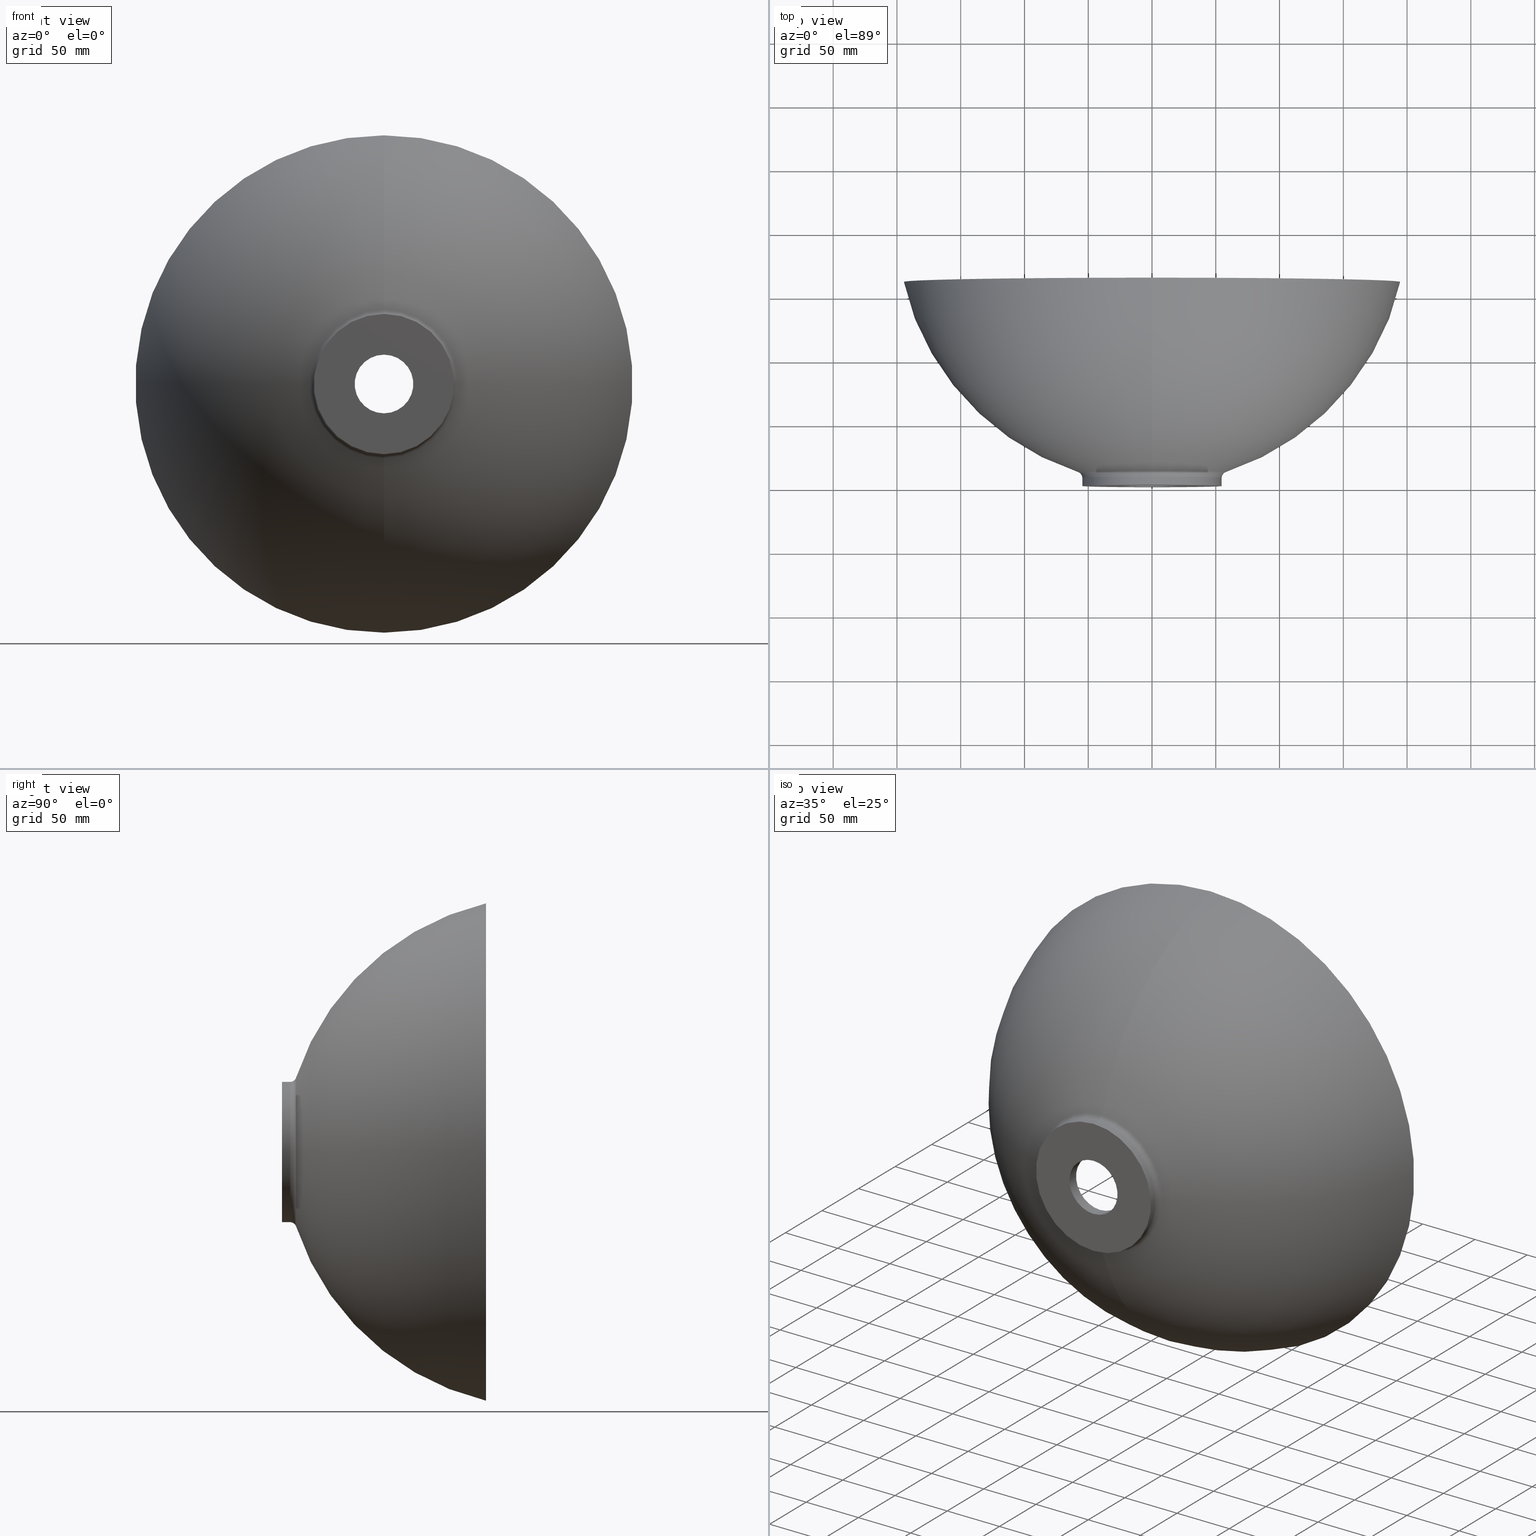
[diagram: canonical four-view strip — front | top / right | iso, engineering-drawing reading convention]
A machine part, canonical four-view strip (front | top / right | iso — engineering-drawing reading convention). The complete STEP part file that produces these views, byte-faithful:
ISO-10303-21;
HEADER;
FILE_DESCRIPTION (( 'STEP AP214' ),
    '1' );
FILE_NAME ('D787.STEP',
    '2018-06-29T09:22:30',
    ( '' ),
    ( '' ),
    'SwSTEP 2.0',
    'SolidWorks 2017',
    '' );
FILE_SCHEMA (( 'AUTOMOTIVE_DESIGN' ));
ENDSEC;

DATA;
#1 =( NAMED_UNIT ( * ) SI_UNIT ( $, .STERADIAN. ) SOLID_ANGLE_UNIT ( ) );
#2 = DIRECTION ( 'NONE',  ( -0.0000000000000000000, -1.000000000000000000, -0.0000000000000000000 ) ) ;
#3 = DIRECTION ( 'NONE',  ( 0.0000000000000000000, 0.0000000000000000000, -1.000000000000000000 ) ) ;
#4 = CIRCLE ( 'NONE', #122, 4.999999999999997300 ) ;
#5 = ORIENTED_EDGE ( 'NONE', *, *, #330, .F. ) ;
#6 = ORIENTED_EDGE ( 'NONE', *, *, #337, .F. ) ;
#7 = AXIS2_PLACEMENT_3D ( 'NONE', #212, #352, #427 ) ;
#8 = APPLICATION_CONTEXT ( 'automotive_design' ) ;
#9 = PRODUCT_DEFINITION_FORMATION_WITH_SPECIFIED_SOURCE ( 'ANY', '', #317, .NOT_KNOWN. ) ;
#10 = CIRCLE ( 'NONE', #218, 55.00000000000001400 ) ;
#11 = CIRCLE ( 'NONE', #365, 207.0152804173007700 ) ;
#12 = PLANE ( 'NONE',  #175 ) ;
#13 = STYLED_ITEM ( 'NONE', ( #301 ), #48 ) ;
#14 = CYLINDRICAL_SURFACE ( 'NONE', #116, 55.00000000000000700 ) ;
#15 = VECTOR ( 'NONE', #412, 1000.000000000000000 ) ;
#16 = DIRECTION ( 'NONE',  ( 0.0000000000000000000, 0.0000000000000000000, -1.000000000000000000 ) ) ;
#17 = CONICAL_SURFACE ( 'NONE', #432, 23.00000000000000000, 0.8726646259971667700 ) ;
#18 = PRODUCT_DEFINITION ( 'UNKNOWN', '', #172, #203 ) ;
#19 = FACE_OUTER_BOUND ( 'NONE', #341, .T. ) ;
#20 = AXIS2_PLACEMENT_3D ( 'NONE', #176, #249, #177 ) ;
#21 = CONICAL_SURFACE ( 'NONE', #235, 23.00000000000000000, 0.8726646259971667700 ) ;
#22 = EDGE_CURVE ( 'NONE', #82, #261, #67, .T. ) ;
#23 = DIRECTION ( 'NONE',  ( -0.0000000000000000000, -1.000000000000000000, -0.0000000000000000000 ) ) ;
#24 = ORIENTED_EDGE ( 'NONE', *, *, #407, .F. ) ;
#25 = VERTEX_POINT ( 'NONE', #137 ) ;
#26 = ORIENTED_EDGE ( 'NONE', *, *, #206, .T. ) ;
#27 = AXIS2_PLACEMENT_3D ( 'NONE', #225, #300, #86 ) ;
#28 = PRODUCT ( 'D787', 'D787', '', ( #287 ) ) ;
#29 = EDGE_CURVE ( 'NONE', #375, #183, #38, .T. ) ;
#30 = DIRECTION ( 'NONE',  ( 0.0000000000000000000, 0.0000000000000000000, -1.000000000000000000 ) ) ;
#31 = CARTESIAN_POINT ( 'NONE',  ( 0.0000000000000000000, 6.351875518007669400, 0.0000000000000000000 ) ) ;
#32 =( NAMED_UNIT ( * ) SI_UNIT ( $, .STERADIAN. ) SOLID_ANGLE_UNIT ( ) );
#33 = DIRECTION ( 'NONE',  ( -0.0000000000000000000, -1.000000000000000000, -0.0000000000000000000 ) ) ;
#34 = DIRECTION ( 'NONE',  ( 0.0000000000000000000, 0.0000000000000000000, -1.000000000000000000 ) ) ;
#35 = CARTESIAN_POINT ( 'NONE',  ( 6.945763980383447500E-015, 6.351875518007669400, 54.99999999999999300 ) ) ;
#36 = PRESENTATION_LAYER_ASSIGNMENT (  '', '', ( #318 ) ) ;
#37 = DIRECTION ( 'NONE',  ( -0.0000000000000000000, -1.000000000000000000, -0.0000000000000000000 ) ) ;
#38 = LINE ( 'NONE', #268, #293 ) ;
#39 = DIRECTION ( 'NONE',  ( 0.0000000000000000000, 0.0000000000000000000, 1.000000000000000000 ) ) ;
#40 = EDGE_LOOP ( 'NONE', ( #370, #139, #406, #208 ) ) ;
#41 = CARTESIAN_POINT ( 'NONE',  ( 0.0000000000000000000, 6.351875518007670300, 0.0000000000000000000 ) ) ;
#42 = ORIENTED_EDGE ( 'NONE', *, *, #326, .T. ) ;
#43 = FACE_BOUND ( 'NONE', #129, .T. ) ;
#44 = FACE_OUTER_BOUND ( 'NONE', #81, .T. ) ;
#45 = CARTESIAN_POINT ( 'NONE',  ( 0.0000000000000000000, 9.000000000000001800, 0.0000000000000000000 ) ) ;
#46 = AXIS2_PLACEMENT_3D ( 'NONE', #108, #170, #3 ) ;
#47 = DIRECTION ( 'NONE',  ( -0.0000000000000000000, -1.000000000000000000, -0.0000000000000000000 ) ) ;
#48 = MANIFOLD_SOLID_BREP ( 'Rotation1', #163 ) ;
#49 = EDGE_LOOP ( 'NONE', ( #106, #358, #289, #359 ) ) ;
#50 = CARTESIAN_POINT ( 'NONE',  ( 0.0000000000000000000, 160.0000000000000000, 0.0000000000000000000 ) ) ;
#51 = EDGE_CURVE ( 'NONE', #239, #83, #263, .T. ) ;
#52 = EDGE_LOOP ( 'NONE', ( #24, #187, #409, #255 ) ) ;
#53 = DIRECTION ( 'NONE',  ( 0.0000000000000000000, 1.000000000000000000, 0.0000000000000000000 ) ) ;
#54 = ADVANCED_FACE ( 'NONE', ( #95 ), #17, .F. ) ;
#55 =( GEOMETRIC_REPRESENTATION_CONTEXT ( 3 ) GLOBAL_UNCERTAINTY_ASSIGNED_CONTEXT ( ( #241 ) ) GLOBAL_UNIT_ASSIGNED_CONTEXT ( ( #117, #58, #392 ) ) REPRESENTATION_CONTEXT ( 'NONE', 'WORKASPACE' ) );
#56 = EDGE_CURVE ( 'NONE', #152, #165, #211, .T. ) ;
#57 = ORIENTED_EDGE ( 'NONE', *, *, #266, .F. ) ;
#58 =( NAMED_UNIT ( * ) PLANE_ANGLE_UNIT ( ) SI_UNIT ( $, .RADIAN. ) );
#59 = CIRCLE ( 'NONE', #270, 192.4496681498263800 ) ;
#60 = DIRECTION ( 'NONE',  ( -1.000000000000000000, 0.0000000000000000000, 0.0000000000000000000 ) ) ;
#61 = ORIENTED_EDGE ( 'NONE', *, *, #202, .F. ) ;
#62 = VERTEX_POINT ( 'NONE', #66 ) ;
#63 = VECTOR ( 'NONE', #215, 1000.000000000000000 ) ;
#64 = EDGE_CURVE ( 'NONE', #83, #239, #149, .T. ) ;
#65 = TOROIDAL_SURFACE ( 'NONE', #135, -6.448385175845634100, 192.4496681498263800 ) ;
#66 = CARTESIAN_POINT ( 'NONE',  ( 6.735557395310445800E-015, 0.0000000000000000000, 55.00000000000002100 ) ) ;
#67 = LINE ( 'NONE', #114, #418 ) ;
#68 = VERTEX_POINT ( 'NONE', #185 ) ;
#69 = CARTESIAN_POINT ( 'NONE',  ( 0.0000000000000000000, -6.123233995736772200E-017, 0.0000000000000000000 ) ) ;
#70 = ADVANCED_BREP_SHAPE_REPRESENTATION ( 'D787', ( #48, #428 ), #55 ) ;
#71 = EDGE_CURVE ( 'NONE', #82, #375, #184, .T. ) ;
#72 = ADVANCED_FACE ( 'NONE', ( #44 ), #65, .F. ) ;
#73 = CARTESIAN_POINT ( 'NONE',  ( 0.0000000000000000000, 0.0000000000000000000, 0.0000000000000000000 ) ) ;
#74 = TOROIDAL_SURFACE ( 'NONE', #213, 60.00000000000000000, 4.999999999999998200 ) ;
#75 = ORIENTED_EDGE ( 'NONE', *, *, #202, .T. ) ;
#76 = ORIENTED_EDGE ( 'NONE', *, *, #396, .F. ) ;
#77 = FACE_OUTER_BOUND ( 'NONE', #339, .T. ) ;
#78 = DIRECTION ( 'NONE',  ( -0.0000000000000000000, -1.000000000000000000, -0.0000000000000000000 ) ) ;
#79 = APPLICATION_PROTOCOL_DEFINITION ( 'draft international standard', 'automotive_design', 1998, #333 ) ;
#80 = FACE_OUTER_BOUND ( 'NONE', #92, .T. ) ;
#81 = EDGE_LOOP ( 'NONE', ( #57, #286, #284, #343 ) ) ;
#82 = VERTEX_POINT ( 'NONE', #417 ) ;
#83 = VERTEX_POINT ( 'NONE', #151 ) ;
#84 = CARTESIAN_POINT ( 'NONE',  ( 0.0000000000000000000, 0.0000000000000000000, 0.0000000000000000000 ) ) ;
#85 = ORIENTED_EDGE ( 'NONE', *, *, #22, .T. ) ;
#86 = DIRECTION ( 'NONE',  ( 0.0000000000000000000, 0.0000000000000000000, -1.000000000000000000 ) ) ;
#87 =( GEOMETRIC_REPRESENTATION_CONTEXT ( 3 ) GLOBAL_UNCERTAINTY_ASSIGNED_CONTEXT ( ( #362 ) ) GLOBAL_UNIT_ASSIGNED_CONTEXT ( ( #98, #265, #1 ) ) REPRESENTATION_CONTEXT ( 'NONE', 'WORKASPACE' ) );
#88 = PRESENTATION_STYLE_ASSIGNMENT (( #321 ) ) ;
#89 = DIRECTION ( 'NONE',  ( -0.0000000000000000000, -1.000000000000000000, -0.0000000000000000000 ) ) ;
#90 = LINE ( 'NONE', #303, #15 ) ;
#91 = PRODUCT_RELATED_PRODUCT_CATEGORY ( 'part', '', ( #28 ) ) ;
#92 = EDGE_LOOP ( 'NONE', ( #323, #168, #179, #331 ) ) ;
#93 = ORIENTED_EDGE ( 'NONE', *, *, #258, .T. ) ;
#94 = FACE_OUTER_BOUND ( 'NONE', #245, .T. ) ;
#95 = FACE_OUTER_BOUND ( 'NONE', #374, .T. ) ;
#96 = EDGE_CURVE ( 'NONE', #238, #152, #4, .T. ) ;
#97 = SURFACE_STYLE_FILL_AREA ( #294 ) ;
#98 =( LENGTH_UNIT ( ) NAMED_UNIT ( * ) SI_UNIT ( .MILLI., .METRE. ) );
#99 = ORIENTED_EDGE ( 'NONE', *, *, #138, .F. ) ;
#100 = CIRCLE ( 'NONE', #401, 54.99999999999999300 ) ;
#101 = CARTESIAN_POINT ( 'NONE',  ( 2.204364238465235800E-014, 160.0000000000000000, 180.0000000000000000 ) ) ;
#102 = EDGE_CURVE ( 'NONE', #238, #344, #269, .T. ) ;
#103 = CARTESIAN_POINT ( 'NONE',  ( -7.896994265268598000E-016, 207.6851594974558900, -6.448385175845634100 ) ) ;
#104 = AXIS2_PLACEMENT_3D ( 'NONE', #199, #60, #131 ) ;
#105 = DIRECTION ( 'NONE',  ( 0.0000000000000000000, 0.0000000000000000000, -1.000000000000000000 ) ) ;
#106 = ORIENTED_EDGE ( 'NONE', *, *, #206, .F. ) ;
#107 = VERTEX_POINT ( 'NONE', #101 ) ;
#108 = CARTESIAN_POINT ( 'NONE',  ( 0.0000000000000000000, 20.00000000000000000, 0.0000000000000000000 ) ) ;
#109 = CARTESIAN_POINT ( 'NONE',  ( 0.0000000000000000000, 0.0000000000000000000, 0.0000000000000000000 ) ) ;
#110 = DIRECTION ( 'NONE',  ( 0.0000000000000000000, 1.000000000000000000, 0.0000000000000000000 ) ) ;
#111 = AXIS2_PLACEMENT_3D ( 'NONE', #195, #319, #223 ) ;
#112 = ORIENTED_EDGE ( 'NONE', *, *, #64, .F. ) ;
#113 = DIRECTION ( 'NONE',  ( 1.000000000000000000, 0.0000000000000000000, 0.0000000000000000000 ) ) ;
#114 = CARTESIAN_POINT ( 'NONE',  ( 0.0000000000000000000, 0.0000000000000000000, -23.00000000000000000 ) ) ;
#115 = DIRECTION ( 'NONE',  ( 0.0000000000000000000, 0.0000000000000000000, -1.000000000000000000 ) ) ;
#116 = AXIS2_PLACEMENT_3D ( 'NONE', #320, #141, #274 ) ;
#117 =( LENGTH_UNIT ( ) NAMED_UNIT ( * ) SI_UNIT ( .MILLI., .METRE. ) );
#118 = DIRECTION ( 'NONE',  ( 0.0000000000000000000, 0.0000000000000000000, -1.000000000000000000 ) ) ;
#119 = DIRECTION ( 'NONE',  ( 0.0000000000000000000, 0.0000000000000000000, 1.000000000000000000 ) ) ;
#120 = CARTESIAN_POINT ( 'NONE',  ( 0.0000000000000000000, 160.0000000000000000, 0.0000000000000000000 ) ) ;
#121 = DIRECTION ( 'NONE',  ( 0.0000000000000000000, 0.0000000000000000000, -1.000000000000000000 ) ) ;
#122 = AXIS2_PLACEMENT_3D ( 'NONE', #159, #346, #150 ) ;
#123 = CARTESIAN_POINT ( 'NONE',  ( 1.551829157441492000E-014, 11.09995979719670700, 58.43293405444508400 ) ) ;
#124 = LINE ( 'NONE', #416, #146 ) ;
#125 = DIRECTION ( 'NONE',  ( -0.0000000000000000000, -1.000000000000000000, -0.0000000000000000000 ) ) ;
#126 = CARTESIAN_POINT ( 'NONE',  ( -195.0000000000000000, 160.0000000000000000, 0.0000000000000000000 ) ) ;
#127 = DIRECTION ( 'NONE',  ( -0.0000000000000000000, -1.000000000000000000, -0.0000000000000000000 ) ) ;
#128 = DIRECTION ( 'NONE',  ( 0.0000000000000000000, 0.0000000000000000000, -1.000000000000000000 ) ) ;
#129 = EDGE_LOOP ( 'NONE', ( #93, #231 ) ) ;
#130 = TOROIDAL_SURFACE ( 'NONE', #411, 60.00000000000000000, 4.999999999999998200 ) ;
#131 = DIRECTION ( 'NONE',  ( 0.0000000000000000000, 0.0000000000000000000, 1.000000000000000000 ) ) ;
#132 = CARTESIAN_POINT ( 'NONE',  ( 0.0000000000000000000, 20.00000000000000000, 0.0000000000000000000 ) ) ;
#133 = CARTESIAN_POINT ( 'NONE',  ( 0.0000000000000000000, 0.0000000000000000000, -55.00000000000001400 ) ) ;
#134 = AXIS2_PLACEMENT_3D ( 'NONE', #196, #2, #372 ) ;
#135 = AXIS2_PLACEMENT_3D ( 'NONE', #262, #200, #121 ) ;
#136 = CYLINDRICAL_SURFACE ( 'NONE', #353, 55.00000000000000700 ) ;
#137 = CARTESIAN_POINT ( 'NONE',  ( 0.0000000000000000000, 160.0000000000000000, -195.0000000000000000 ) ) ;
#138 = EDGE_CURVE ( 'NONE', #344, #238, #100, .T. ) ;
#139 = ORIENTED_EDGE ( 'NONE', *, *, #138, .T. ) ;
#140 = ORIENTED_EDGE ( 'NONE', *, *, #330, .T. ) ;
#141 = DIRECTION ( 'NONE',  ( -0.0000000000000000000, -1.000000000000000000, -0.0000000000000000000 ) ) ;
#142 = DIRECTION ( 'NONE',  ( -0.0000000000000000000, -1.000000000000000000, -0.0000000000000000000 ) ) ;
#143 = PRODUCT_DEFINITION_SHAPE ( 'NONE', 'NONE',  #144 ) ;
#144 = PRODUCT_DEFINITION ( 'UNKNOWN', '', #9, #363 ) ;
#145 = DIRECTION ( 'NONE',  ( -0.0000000000000000000, -1.000000000000000000, -0.0000000000000000000 ) ) ;
#146 = VECTOR ( 'NONE', #221, 1000.000000000000000 ) ;
#147 = PRODUCT_CONTEXT ( 'NONE', #229, 'mechanical' ) ;
#148 = ORIENTED_EDGE ( 'NONE', *, *, #181, .F. ) ;
#149 = CIRCLE ( 'NONE', #46, 36.10928951853636400 ) ;
#150 = DIRECTION ( 'NONE',  ( 0.0000000000000000000, 0.0000000000000000000, 1.000000000000000000 ) ) ;
#151 = CARTESIAN_POINT ( 'NONE',  ( 1.323287748374420900E-014, 20.00000000000000000, 36.10928951853636400 ) ) ;
#152 = VERTEX_POINT ( 'NONE', #182 ) ;
#153 = CIRCLE ( 'NONE', #134, 55.00000000000001400 ) ;
#154 = TOROIDAL_SURFACE ( 'NONE', #251, -6.448385175845634100, 207.0152804173007700 ) ;
#155 = SURFACE_STYLE_FILL_AREA ( #194 ) ;
#156 = CARTESIAN_POINT ( 'NONE',  ( 0.0000000000000000000, -6.123233995736772200E-017, -23.00000000000000000 ) ) ;
#157 = ADVANCED_FACE ( 'NONE', ( #80 ), #136, .T. ) ;
#158 = EDGE_CURVE ( 'NONE', #226, #62, #10, .T. ) ;
#159 = CARTESIAN_POINT ( 'NONE',  ( 0.0000000000000000000, 6.351875518007670300, -60.00000000000000000 ) ) ;
#160 = DIRECTION ( 'NONE',  ( 0.0000000000000000000, 0.0000000000000000000, -1.000000000000000000 ) ) ;
#161 = DIRECTION ( 'NONE',  ( 0.0000000000000000000, 0.0000000000000000000, -1.000000000000000000 ) ) ;
#162 = EDGE_CURVE ( 'NONE', #238, #226, #124, .T. ) ;
#163 = CLOSED_SHELL ( 'NONE', ( #54, #312, #157, #222, #315, #72, #364, #347, #340, #413, #389, #171, #422, #386 ) ) ;
#164 = PRODUCT_DEFINITION_SHAPE ( 'NONE', 'NONE',  #18 ) ;
#165 = VERTEX_POINT ( 'NONE', #123 ) ;
#166 = CIRCLE ( 'NONE', #415, 4.999999999999997300 ) ;
#167 = AXIS2_PLACEMENT_3D ( 'NONE', #50, #47, #128 ) ;
#168 = ORIENTED_EDGE ( 'NONE', *, *, #387, .T. ) ;
#169 = CARTESIAN_POINT ( 'NONE',  ( 0.0000000000000000000, 160.0000000000000000, 0.0000000000000000000 ) ) ;
#170 = DIRECTION ( 'NONE',  ( -0.0000000000000000000, -1.000000000000000000, -0.0000000000000000000 ) ) ;
#171 = ADVANCED_FACE ( 'NONE', ( #253, #94 ), #360, .F. ) ;
#172 = PRODUCT_DEFINITION_FORMATION_WITH_SPECIFIED_SOURCE ( 'ANY', '', #28, .NOT_KNOWN. ) ;
#173 = EDGE_CURVE ( 'NONE', #183, #261, #408, .T. ) ;
#174 =( NAMED_UNIT ( * ) PLANE_ANGLE_UNIT ( ) SI_UNIT ( $, .RADIAN. ) );
#175 = AXIS2_PLACEMENT_3D ( 'NONE', #126, #348, #161 ) ;
#176 = CARTESIAN_POINT ( 'NONE',  ( 0.0000000000000000000, 160.0000000000000000, 0.0000000000000000000 ) ) ;
#177 = DIRECTION ( 'NONE',  ( 0.0000000000000000000, 0.0000000000000000000, -1.000000000000000000 ) ) ;
#178 = DIRECTION ( 'NONE',  ( -0.0000000000000000000, -1.000000000000000000, -0.0000000000000000000 ) ) ;
#179 = ORIENTED_EDGE ( 'NONE', *, *, #158, .F. ) ;
#180 = CARTESIAN_POINT ( 'NONE',  ( 2.388061258337338900E-014, 160.0000000000000000, 195.0000000000000000 ) ) ;
#181 = EDGE_CURVE ( 'NONE', #344, #165, #166, .T. ) ;
#182 = CARTESIAN_POINT ( 'NONE',  ( 0.0000000000000000000, 11.09995979719670700, -58.43293405444508400 ) ) ;
#183 = VERTEX_POINT ( 'NONE', #201 ) ;
#184 = CIRCLE ( 'NONE', #423, 23.00000000000000000 ) ;
#185 = CARTESIAN_POINT ( 'NONE',  ( 0.0000000000000000000, 160.0000000000000000, -180.0000000000000000 ) ) ;
#186 = CARTESIAN_POINT ( 'NONE',  ( 0.0000000000000000000, 6.351875518007669400, 0.0000000000000000000 ) ) ;
#187 = ORIENTED_EDGE ( 'NONE', *, *, #258, .F. ) ;
#188 = AXIS2_PLACEMENT_3D ( 'NONE', #120, #125, #291 ) ;
#189 = CIRCLE ( 'NONE', #104, 192.4496681498263800 ) ;
#190 = EDGE_LOOP ( 'NONE', ( #334, #257, #373, #421 ) ) ;
#191 = ORIENTED_EDGE ( 'NONE', *, *, #29, .F. ) ;
#192 = DIRECTION ( 'NONE',  ( 0.0000000000000000000, 0.0000000000000000000, -1.000000000000000000 ) ) ;
#193 = CIRCLE ( 'NONE', #20, 195.0000000000000000 ) ;
#194 = FILL_AREA_STYLE ('',( #383 ) ) ;
#195 = CARTESIAN_POINT ( 'NONE',  ( 0.0000000000000000000, 207.6851594974558900, 6.448385175845634100 ) ) ;
#196 = CARTESIAN_POINT ( 'NONE',  ( 0.0000000000000000000, 0.0000000000000000000, 0.0000000000000000000 ) ) ;
#197 = FACE_OUTER_BOUND ( 'NONE', #40, .T. ) ;
#198 = CIRCLE ( 'NONE', #227, 195.0000000000000000 ) ;
#199 = CARTESIAN_POINT ( 'NONE',  ( 0.0000000000000000000, 207.6851594974558900, 6.448385175845634100 ) ) ;
#200 = DIRECTION ( 'NONE',  ( -0.0000000000000000000, -1.000000000000000000, -0.0000000000000000000 ) ) ;
#201 = CARTESIAN_POINT ( 'NONE',  ( 2.816687638038912400E-015, -6.123233995736772200E-017, 23.00000000000000000 ) ) ;
#202 = EDGE_CURVE ( 'NONE', #165, #152, #366, .T. ) ;
#203 = PRODUCT_DEFINITION_CONTEXT ( 'detailed design', #333, 'design' ) ;
#204 = LINE ( 'NONE', #302, #292 ) ;
#205 = CARTESIAN_POINT ( 'NONE',  ( 0.0000000000000000000, 11.09995979719670700, 0.0000000000000000000 ) ) ;
#206 = EDGE_CURVE ( 'NONE', #375, #82, #288, .T. ) ;
#207 = ORIENTED_EDGE ( 'NONE', *, *, #102, .F. ) ;
#208 = ORIENTED_EDGE ( 'NONE', *, *, #382, .F. ) ;
#209 = AXIS2_PLACEMENT_3D ( 'NONE', #69, #23, #105 ) ;
#210 = CIRCLE ( 'NONE', #188, 180.0000000000000000 ) ;
#211 = CIRCLE ( 'NONE', #349, 58.43293405444508400 ) ;
#212 = CARTESIAN_POINT ( 'NONE',  ( 0.0000000000000000000, 0.0000000000000000000, 0.0000000000000000000 ) ) ;
#213 = AXIS2_PLACEMENT_3D ( 'NONE', #429, #142, #228 ) ;
#214 = COLOUR_RGB ( '',1.000000000000000000, 1.000000000000000000, 1.000000000000000000 ) ;
#215 = DIRECTION ( 'NONE',  ( 9.381338752702746800E-017, 0.6427876096865378100, -0.7660444431189793500 ) ) ;
#216 = AXIS2_PLACEMENT_3D ( 'NONE', #355, #394, #118 ) ;
#217 = SURFACE_SIDE_STYLE ('',( #97 ) ) ;
#218 = AXIS2_PLACEMENT_3D ( 'NONE', #250, #127, #192 ) ;
#219 = CYLINDRICAL_SURFACE ( 'NONE', #264, 23.00000000000000000 ) ;
#220 = TOROIDAL_SURFACE ( 'NONE', #216, -6.448385175845634100, 207.0152804173007700 ) ;
#221 = DIRECTION ( 'NONE',  ( -0.0000000000000000000, -1.000000000000000000, -0.0000000000000000000 ) ) ;
#222 = ADVANCED_FACE ( 'NONE', ( #324 ), #130, .F. ) ;
#223 = DIRECTION ( 'NONE',  ( 0.0000000000000000000, 0.0000000000000000000, 1.000000000000000000 ) ) ;
#224 = AXIS2_PLACEMENT_3D ( 'NONE', #391, #435, #342 ) ;
#225 = CARTESIAN_POINT ( 'NONE',  ( 0.0000000000000000000, 0.0000000000000000000, 0.0000000000000000000 ) ) ;
#226 = VERTEX_POINT ( 'NONE', #133 ) ;
#227 = AXIS2_PLACEMENT_3D ( 'NONE', #169, #351, #16 ) ;
#228 = DIRECTION ( 'NONE',  ( 0.0000000000000000000, 0.0000000000000000000, -1.000000000000000000 ) ) ;
#229 = APPLICATION_CONTEXT ( 'automotive_design' ) ;
#230 = EDGE_CURVE ( 'NONE', #25, #152, #298, .T. ) ;
#231 = ORIENTED_EDGE ( 'NONE', *, *, #266, .T. ) ;
#232 =( LENGTH_UNIT ( ) NAMED_UNIT ( * ) SI_UNIT ( .MILLI., .METRE. ) );
#233 = AXIS2_PLACEMENT_3D ( 'NONE', #31, #37, #34 ) ;
#234 = DIRECTION ( 'NONE',  ( -0.0000000000000000000, -1.000000000000000000, -0.0000000000000000000 ) ) ;
#235 = AXIS2_PLACEMENT_3D ( 'NONE', #45, #53, #434 ) ;
#236 = FACE_OUTER_BOUND ( 'NONE', #190, .T. ) ;
#237 = VERTEX_POINT ( 'NONE', #180 ) ;
#238 = VERTEX_POINT ( 'NONE', #402 ) ;
#239 = VERTEX_POINT ( 'NONE', #384 ) ;
#240 = DIRECTION ( 'NONE',  ( -1.224646799147353200E-016, 0.0000000000000000000, -1.000000000000000000 ) ) ;
#241 = UNCERTAINTY_MEASURE_WITH_UNIT (LENGTH_MEASURE( 1.000000000000000100E-005 ), #117, 'distance_accuracy_value', 'NONE');
#242 = EDGE_CURVE ( 'NONE', #25, #237, #198, .T. ) ;
#243 = ORIENTED_EDGE ( 'NONE', *, *, #230, .T. ) ;
#244 = DIRECTION ( 'NONE',  ( 0.0000000000000000000, 0.6427876096865378100, 0.7660444431189793500 ) ) ;
#245 = EDGE_LOOP ( 'NONE', ( #425, #426 ) ) ;
#246 = CARTESIAN_POINT ( 'NONE',  ( -7.896994265268598000E-016, 207.6851594974558900, -6.448385175845634100 ) ) ;
#247 = AXIS2_PLACEMENT_3D ( 'NONE', #205, #33, #400 ) ;
#248 = FACE_OUTER_BOUND ( 'NONE', #49, .T. ) ;
#249 = DIRECTION ( 'NONE',  ( -0.0000000000000000000, -1.000000000000000000, -0.0000000000000000000 ) ) ;
#250 = CARTESIAN_POINT ( 'NONE',  ( 0.0000000000000000000, 0.0000000000000000000, 0.0000000000000000000 ) ) ;
#251 = AXIS2_PLACEMENT_3D ( 'NONE', #378, #178, #325 ) ;
#252 = EDGE_LOOP ( 'NONE', ( #99, #273, #75, #309 ) ) ;
#253 = FACE_BOUND ( 'NONE', #322, .T. ) ;
#254 = MECHANICAL_DESIGN_GEOMETRIC_PRESENTATION_REPRESENTATION (  '', ( #13 ), #87 ) ;
#255 = ORIENTED_EDGE ( 'NONE', *, *, #51, .T. ) ;
#256 = SURFACE_SIDE_STYLE ('',( #155 ) ) ;
#257 = ORIENTED_EDGE ( 'NONE', *, *, #337, .T. ) ;
#258 = EDGE_CURVE ( 'NONE', #68, #107, #210, .T. ) ;
#259 = DIRECTION ( 'NONE',  ( -1.224646799147354200E-016, 0.0000000000000000000, -1.000000000000000000 ) ) ;
#260 = DIRECTION ( 'NONE',  ( -0.0000000000000000000, -1.000000000000000000, -0.0000000000000000000 ) ) ;
#261 = VERTEX_POINT ( 'NONE', #156 ) ;
#262 = CARTESIAN_POINT ( 'NONE',  ( 0.0000000000000000000, 207.6851594974558900, 0.0000000000000000000 ) ) ;
#263 = CIRCLE ( 'NONE', #290, 36.10928951853636400 ) ;
#264 = AXIS2_PLACEMENT_3D ( 'NONE', #84, #89, #285 ) ;
#265 =( NAMED_UNIT ( * ) PLANE_ANGLE_UNIT ( ) SI_UNIT ( $, .RADIAN. ) );
#266 = EDGE_CURVE ( 'NONE', #107, #68, #419, .T. ) ;
#267 = AXIS2_PLACEMENT_3D ( 'NONE', #356, #110, #311 ) ;
#268 = CARTESIAN_POINT ( 'NONE',  ( 2.816687638038912400E-015, 0.0000000000000000000, 23.00000000000000000 ) ) ;
#269 = CIRCLE ( 'NONE', #233, 54.99999999999999300 ) ;
#270 = AXIS2_PLACEMENT_3D ( 'NONE', #103, #410, #379 ) ;
#271 = DIRECTION ( 'NONE',  ( 0.0000000000000000000, 0.0000000000000000000, -1.000000000000000000 ) ) ;
#272 = DIRECTION ( 'NONE',  ( -0.0000000000000000000, -1.000000000000000000, -0.0000000000000000000 ) ) ;
#273 = ORIENTED_EDGE ( 'NONE', *, *, #181, .T. ) ;
#274 = DIRECTION ( 'NONE',  ( 0.0000000000000000000, 0.0000000000000000000, -1.000000000000000000 ) ) ;
#275 = ORIENTED_EDGE ( 'NONE', *, *, #71, .F. ) ;
#276 = MECHANICAL_DESIGN_GEOMETRIC_PRESENTATION_REPRESENTATION (  '', ( #318 ), #297 ) ;
#277 = DIRECTION ( 'NONE',  ( -0.0000000000000000000, -1.000000000000000000, -0.0000000000000000000 ) ) ;
#278 = ORIENTED_EDGE ( 'NONE', *, *, #242, .F. ) ;
#279 = LINE ( 'NONE', #430, #63 ) ;
#280 = COLOUR_RGB ( '',1.000000000000000000, 1.000000000000000000, 1.000000000000000000 ) ;
#281 = PRESENTATION_LAYER_ASSIGNMENT (  '', '', ( #13 ) ) ;
#282 = CARTESIAN_POINT ( 'NONE',  ( 0.0000000000000000000, -6.123233995736772200E-017, 0.0000000000000000000 ) ) ;
#283 = UNCERTAINTY_MEASURE_WITH_UNIT (LENGTH_MEASURE( 1.000000000000000100E-005 ), #232, 'distance_accuracy_value', 'NONE');
#284 = ORIENTED_EDGE ( 'NONE', *, *, #64, .T. ) ;
#285 = DIRECTION ( 'NONE',  ( 0.0000000000000000000, 0.0000000000000000000, -1.000000000000000000 ) ) ;
#286 = ORIENTED_EDGE ( 'NONE', *, *, #407, .T. ) ;
#287 = PRODUCT_CONTEXT ( 'NONE', #350, 'mechanical' ) ;
#288 = CIRCLE ( 'NONE', #224, 23.00000000000000000 ) ;
#289 = ORIENTED_EDGE ( 'NONE', *, *, #173, .T. ) ;
#290 = AXIS2_PLACEMENT_3D ( 'NONE', #132, #234, #316 ) ;
#291 = DIRECTION ( 'NONE',  ( 0.0000000000000000000, 0.0000000000000000000, -1.000000000000000000 ) ) ;
#292 = VECTOR ( 'NONE', #244, 1000.000000000000000 ) ;
#293 = VECTOR ( 'NONE', #78, 1000.000000000000000 ) ;
#294 = FILL_AREA_STYLE ('',( #369 ) ) ;
#295 = DIRECTION ( 'NONE',  ( -0.0000000000000000000, -1.000000000000000000, -0.0000000000000000000 ) ) ;
#296 = APPLICATION_PROTOCOL_DEFINITION ( 'draft international standard', 'automotive_design', 1998, #229 ) ;
#297 =( GEOMETRIC_REPRESENTATION_CONTEXT ( 3 ) GLOBAL_UNCERTAINTY_ASSIGNED_CONTEXT ( ( #283 ) ) GLOBAL_UNIT_ASSIGNED_CONTEXT ( ( #232, #174, #32 ) ) REPRESENTATION_CONTEXT ( 'NONE', 'WORKASPACE' ) );
#298 = CIRCLE ( 'NONE', #111, 207.0152804173007700 ) ;
#299 = ORIENTED_EDGE ( 'NONE', *, *, #326, .F. ) ;
#300 = DIRECTION ( 'NONE',  ( -0.0000000000000000000, -1.000000000000000000, -0.0000000000000000000 ) ) ;
#301 = PRESENTATION_STYLE_ASSIGNMENT (( #306 ) ) ;
#302 = CARTESIAN_POINT ( 'NONE',  ( 0.0000000000000000000, 9.000000000000001800, 23.00000000000000000 ) ) ;
#303 = CARTESIAN_POINT ( 'NONE',  ( 6.735557395310444200E-015, 0.0000000000000000000, 55.00000000000000700 ) ) ;
#304 = FACE_OUTER_BOUND ( 'NONE', #404, .T. ) ;
#305 = PRODUCT_RELATED_PRODUCT_CATEGORY ( 'part', '', ( #317 ) ) ;
#306 = SURFACE_STYLE_USAGE ( .BOTH. , #256 ) ;
#307 = EDGE_CURVE ( 'NONE', #68, #239, #189, .T. ) ;
#308 = DIRECTION ( 'NONE',  ( -0.0000000000000000000, -1.000000000000000000, -0.0000000000000000000 ) ) ;
#309 = ORIENTED_EDGE ( 'NONE', *, *, #96, .F. ) ;
#310 = FACE_OUTER_BOUND ( 'NONE', #52, .T. ) ;
#311 = DIRECTION ( 'NONE',  ( 0.0000000000000000000, -0.0000000000000000000, 1.000000000000000000 ) ) ;
#312 = ADVANCED_FACE ( 'NONE', ( #248 ), #219, .F. ) ;
#313 = DIRECTION ( 'NONE',  ( 0.0000000000000000000, 0.0000000000000000000, -1.000000000000000000 ) ) ;
#314 = APPLICATION_PROTOCOL_DEFINITION ( 'draft international standard', 'automotive_design', 1998, #8 ) ;
#315 = ADVANCED_FACE ( 'NONE', ( #236 ), #220, .T. ) ;
#316 = DIRECTION ( 'NONE',  ( 0.0000000000000000000, 0.0000000000000000000, -1.000000000000000000 ) ) ;
#317 = PRODUCT ( 'D787', 'D787', '', ( #147 ) ) ;
#318 = STYLED_ITEM ( 'NONE', ( #88 ), #70 ) ;
#319 = DIRECTION ( 'NONE',  ( -1.000000000000000000, 0.0000000000000000000, 0.0000000000000000000 ) ) ;
#320 = CARTESIAN_POINT ( 'NONE',  ( 0.0000000000000000000, 0.0000000000000000000, 0.0000000000000000000 ) ) ;
#321 = SURFACE_STYLE_USAGE ( .BOTH. , #217 ) ;
#322 = EDGE_LOOP ( 'NONE', ( #5, #390 ) ) ;
#323 = ORIENTED_EDGE ( 'NONE', *, *, #102, .T. ) ;
#324 = FACE_OUTER_BOUND ( 'NONE', #252, .T. ) ;
#325 = DIRECTION ( 'NONE',  ( 0.0000000000000000000, 0.0000000000000000000, -1.000000000000000000 ) ) ;
#326 = EDGE_CURVE ( 'NONE', #237, #25, #193, .T. ) ;
#327 = EDGE_LOOP ( 'NONE', ( #6, #42, #243, #61 ) ) ;
#328 = ORIENTED_EDGE ( 'NONE', *, *, #345, .T. ) ;
#329 = CYLINDRICAL_SURFACE ( 'NONE', #27, 23.00000000000000000 ) ;
#330 = EDGE_CURVE ( 'NONE', #261, #183, #376, .T. ) ;
#331 = ORIENTED_EDGE ( 'NONE', *, *, #162, .F. ) ;
#332 = ORIENTED_EDGE ( 'NONE', *, *, #96, .T. ) ;
#333 = APPLICATION_CONTEXT ( 'automotive_design' ) ;
#334 = ORIENTED_EDGE ( 'NONE', *, *, #242, .T. ) ;
#335 = CARTESIAN_POINT ( 'NONE',  ( 0.0000000000000000000, 207.6851594974558900, 0.0000000000000000000 ) ) ;
#336 = SHAPE_DEFINITION_REPRESENTATION ( #164, #70 ) ;
#337 = EDGE_CURVE ( 'NONE', #237, #165, #11, .T. ) ;
#338 = ORIENTED_EDGE ( 'NONE', *, *, #56, .T. ) ;
#339 = EDGE_LOOP ( 'NONE', ( #148, #207, #332, #338 ) ) ;
#340 = ADVANCED_FACE ( 'NONE', ( #405 ), #154, .T. ) ;
#341 = EDGE_LOOP ( 'NONE', ( #191, #275, #85, #140 ) ) ;
#342 = DIRECTION ( 'NONE',  ( 0.0000000000000000000, 0.0000000000000000000, -1.000000000000000000 ) ) ;
#343 = ORIENTED_EDGE ( 'NONE', *, *, #307, .F. ) ;
#344 = VERTEX_POINT ( 'NONE', #35 ) ;
#345 = EDGE_CURVE ( 'NONE', #375, #83, #204, .T. ) ;
#346 = DIRECTION ( 'NONE',  ( -1.000000000000000000, 0.0000000000000000000, 0.0000000000000000000 ) ) ;
#347 = ADVANCED_FACE ( 'NONE', ( #399, #43 ), #12, .F. ) ;
#348 = DIRECTION ( 'NONE',  ( 0.0000000000000000000, -1.000000000000000000, -0.0000000000000000000 ) ) ;
#349 = AXIS2_PLACEMENT_3D ( 'NONE', #385, #277, #380 ) ;
#350 = APPLICATION_CONTEXT ( 'automotive_design' ) ;
#351 = DIRECTION ( 'NONE',  ( -0.0000000000000000000, -1.000000000000000000, -0.0000000000000000000 ) ) ;
#352 = DIRECTION ( 'NONE',  ( 0.0000000000000000000, 0.0000000000000000000, 1.000000000000000000 ) ) ;
#353 = AXIS2_PLACEMENT_3D ( 'NONE', #73, #260, #393 ) ;
#354 = DIRECTION ( 'NONE',  ( -0.0000000000000000000, -1.000000000000000000, -0.0000000000000000000 ) ) ;
#355 = CARTESIAN_POINT ( 'NONE',  ( 0.0000000000000000000, 207.6851594974558900, 0.0000000000000000000 ) ) ;
#356 = CARTESIAN_POINT ( 'NONE',  ( -23.00000000000000000, -3.061616997868386100E-017, 0.0000000000000000000 ) ) ;
#357 = DIRECTION ( 'NONE',  ( 0.0000000000000000000, 1.000000000000000000, 0.0000000000000000000 ) ) ;
#358 = ORIENTED_EDGE ( 'NONE', *, *, #29, .T. ) ;
#359 = ORIENTED_EDGE ( 'NONE', *, *, #22, .F. ) ;
#360 = PLANE ( 'NONE',  #267 ) ;
#361 = TOROIDAL_SURFACE ( 'NONE', #424, -6.448385175845634100, 192.4496681498263800 ) ;
#362 = UNCERTAINTY_MEASURE_WITH_UNIT (LENGTH_MEASURE( 1.000000000000000100E-005 ), #98, 'distance_accuracy_value', 'NONE');
#363 = PRODUCT_DEFINITION_CONTEXT ( 'detailed design', #8, 'design' ) ;
#364 = ADVANCED_FACE ( 'NONE', ( #310 ), #361, .F. ) ;
#365 = AXIS2_PLACEMENT_3D ( 'NONE', #246, #377, #240 ) ;
#366 = CIRCLE ( 'NONE', #247, 58.43293405444508400 ) ;
#367 = CARTESIAN_POINT ( 'NONE',  ( 0.0000000000000000000, 9.000000000000001800, 0.0000000000000000000 ) ) ;
#368 = APPLICATION_PROTOCOL_DEFINITION ( 'draft international standard', 'automotive_design', 1998, #350 ) ;
#369 = FILL_AREA_STYLE_COLOUR ( '', #280 ) ;
#370 = ORIENTED_EDGE ( 'NONE', *, *, #387, .F. ) ;
#371 = AXIS2_PLACEMENT_3D ( 'NONE', #282, #272, #271 ) ;
#372 = DIRECTION ( 'NONE',  ( 0.0000000000000000000, 0.0000000000000000000, -1.000000000000000000 ) ) ;
#373 = ORIENTED_EDGE ( 'NONE', *, *, #56, .F. ) ;
#374 = EDGE_LOOP ( 'NONE', ( #26, #398, #112, #395 ) ) ;
#375 = VERTEX_POINT ( 'NONE', #414 ) ;
#376 = CIRCLE ( 'NONE', #371, 23.00000000000000000 ) ;
#377 = DIRECTION ( 'NONE',  ( 1.000000000000000000, 0.0000000000000000000, -1.224646799147353200E-016 ) ) ;
#378 = CARTESIAN_POINT ( 'NONE',  ( 0.0000000000000000000, 207.6851594974558900, 0.0000000000000000000 ) ) ;
#379 = DIRECTION ( 'NONE',  ( -1.224646799147353200E-016, 0.0000000000000000000, -1.000000000000000000 ) ) ;
#380 = DIRECTION ( 'NONE',  ( 0.0000000000000000000, 0.0000000000000000000, -1.000000000000000000 ) ) ;
#381 = DIRECTION ( 'NONE',  ( 1.000000000000000000, 0.0000000000000000000, -1.224646799147353200E-016 ) ) ;
#382 = EDGE_CURVE ( 'NONE', #62, #226, #153, .T. ) ;
#383 = FILL_AREA_STYLE_COLOUR ( '', #214 ) ;
#384 = CARTESIAN_POINT ( 'NONE',  ( 0.0000000000000000000, 20.00000000000000000, -36.10928951853636400 ) ) ;
#385 = CARTESIAN_POINT ( 'NONE',  ( 0.0000000000000000000, 11.09995979719670700, 0.0000000000000000000 ) ) ;
#386 = ADVANCED_FACE ( 'NONE', ( #304 ), #21, .F. ) ;
#387 = EDGE_CURVE ( 'NONE', #344, #62, #90, .T. ) ;
#388 = CARTESIAN_POINT ( 'NONE',  ( 0.0000000000000000000, 9.000000000000001800, 0.0000000000000000000 ) ) ;
#389 = ADVANCED_FACE ( 'NONE', ( #197 ), #14, .T. ) ;
#390 = ORIENTED_EDGE ( 'NONE', *, *, #173, .F. ) ;
#391 = CARTESIAN_POINT ( 'NONE',  ( 0.0000000000000000000, 9.000000000000001800, 0.0000000000000000000 ) ) ;
#392 =( NAMED_UNIT ( * ) SI_UNIT ( $, .STERADIAN. ) SOLID_ANGLE_UNIT ( ) );
#393 = DIRECTION ( 'NONE',  ( 0.0000000000000000000, 0.0000000000000000000, -1.000000000000000000 ) ) ;
#394 = DIRECTION ( 'NONE',  ( -0.0000000000000000000, -1.000000000000000000, -0.0000000000000000000 ) ) ;
#395 = ORIENTED_EDGE ( 'NONE', *, *, #345, .F. ) ;
#396 = EDGE_CURVE ( 'NONE', #82, #239, #279, .T. ) ;
#397 = CARTESIAN_POINT ( 'NONE',  ( 7.347880794884118400E-015, 6.351875518007670300, 60.00000000000000000 ) ) ;
#398 = ORIENTED_EDGE ( 'NONE', *, *, #396, .T. ) ;
#399 = FACE_OUTER_BOUND ( 'NONE', #403, .T. ) ;
#400 = DIRECTION ( 'NONE',  ( 0.0000000000000000000, 0.0000000000000000000, -1.000000000000000000 ) ) ;
#401 = AXIS2_PLACEMENT_3D ( 'NONE', #186, #308, #313 ) ;
#402 = CARTESIAN_POINT ( 'NONE',  ( 0.0000000000000000000, 6.351875518007669400, -54.99999999999999300 ) ) ;
#403 = EDGE_LOOP ( 'NONE', ( #278, #299 ) ) ;
#404 = EDGE_LOOP ( 'NONE', ( #76, #420, #328, #431 ) ) ;
#405 = FACE_OUTER_BOUND ( 'NONE', #327, .T. ) ;
#406 = ORIENTED_EDGE ( 'NONE', *, *, #162, .T. ) ;
#407 = EDGE_CURVE ( 'NONE', #107, #83, #59, .T. ) ;
#408 = CIRCLE ( 'NONE', #209, 23.00000000000000000 ) ;
#409 = ORIENTED_EDGE ( 'NONE', *, *, #307, .T. ) ;
#410 = DIRECTION ( 'NONE',  ( 1.000000000000000000, 0.0000000000000000000, -1.224646799147353200E-016 ) ) ;
#411 = AXIS2_PLACEMENT_3D ( 'NONE', #41, #433, #160 ) ;
#412 = DIRECTION ( 'NONE',  ( -0.0000000000000000000, -1.000000000000000000, -0.0000000000000000000 ) ) ;
#413 = ADVANCED_FACE ( 'NONE', ( #77 ), #74, .F. ) ;
#414 = CARTESIAN_POINT ( 'NONE',  ( 2.816687638038912400E-015, 9.000000000000001800, 23.00000000000000000 ) ) ;
#415 = AXIS2_PLACEMENT_3D ( 'NONE', #397, #381, #259 ) ;
#416 = CARTESIAN_POINT ( 'NONE',  ( 0.0000000000000000000, 0.0000000000000000000, -55.00000000000000700 ) ) ;
#417 = CARTESIAN_POINT ( 'NONE',  ( 0.0000000000000000000, 9.000000000000001800, -23.00000000000000000 ) ) ;
#418 = VECTOR ( 'NONE', #295, 1000.000000000000000 ) ;
#419 = CIRCLE ( 'NONE', #167, 180.0000000000000000 ) ;
#420 = ORIENTED_EDGE ( 'NONE', *, *, #71, .T. ) ;
#421 = ORIENTED_EDGE ( 'NONE', *, *, #230, .F. ) ;
#422 = ADVANCED_FACE ( 'NONE', ( #19 ), #329, .F. ) ;
#423 = AXIS2_PLACEMENT_3D ( 'NONE', #388, #354, #30 ) ;
#424 = AXIS2_PLACEMENT_3D ( 'NONE', #335, #145, #115 ) ;
#425 = ORIENTED_EDGE ( 'NONE', *, *, #158, .T. ) ;
#426 = ORIENTED_EDGE ( 'NONE', *, *, #382, .T. ) ;
#427 = DIRECTION ( 'NONE',  ( 1.000000000000000000, 0.0000000000000000000, 0.0000000000000000000 ) ) ;
#428 = AXIS2_PLACEMENT_3D ( 'NONE', #109, #39, #113 ) ;
#429 = CARTESIAN_POINT ( 'NONE',  ( 0.0000000000000000000, 6.351875518007670300, 0.0000000000000000000 ) ) ;
#430 = CARTESIAN_POINT ( 'NONE',  ( 2.816687638038912400E-015, 9.000000000000001800, -23.00000000000000000 ) ) ;
#431 = ORIENTED_EDGE ( 'NONE', *, *, #51, .F. ) ;
#432 = AXIS2_PLACEMENT_3D ( 'NONE', #367, #357, #119 ) ;
#433 = DIRECTION ( 'NONE',  ( -0.0000000000000000000, -1.000000000000000000, -0.0000000000000000000 ) ) ;
#434 = DIRECTION ( 'NONE',  ( 0.0000000000000000000, 0.0000000000000000000, 1.000000000000000000 ) ) ;
#435 = DIRECTION ( 'NONE',  ( -0.0000000000000000000, -1.000000000000000000, -0.0000000000000000000 ) ) ;
ENDSEC;
END-ISO-10303-21;
